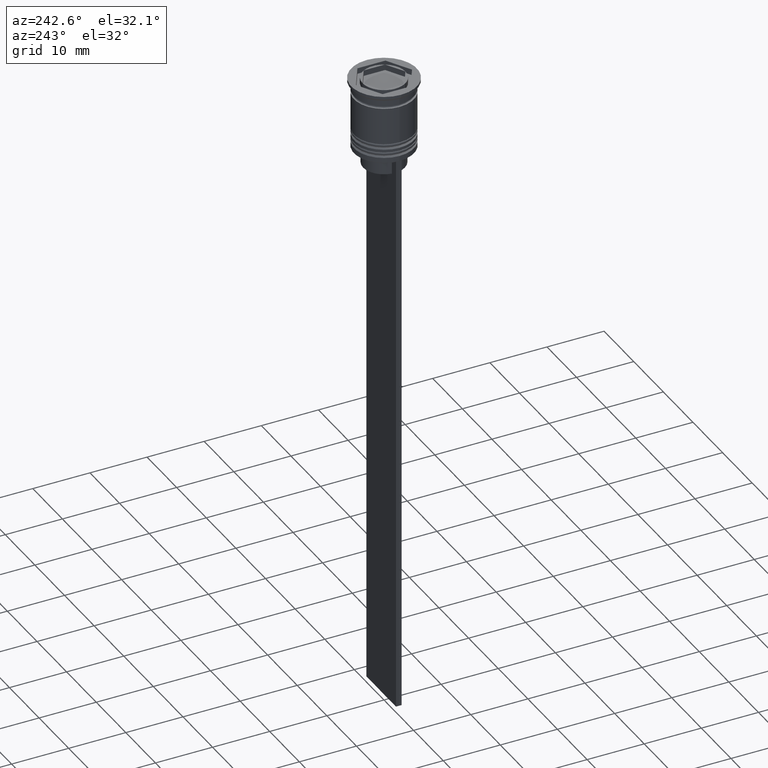
[diagram: clean part render]
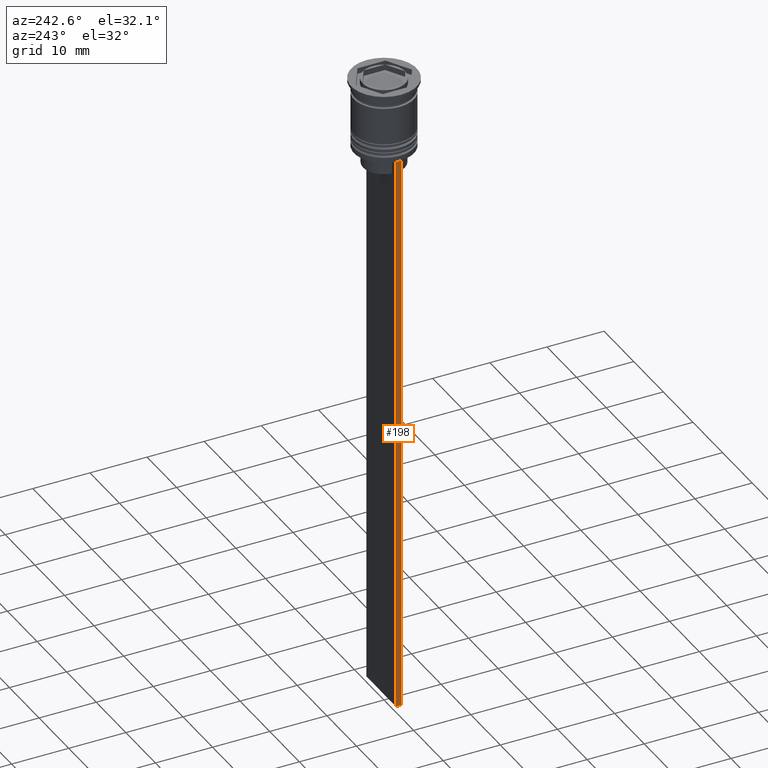
[diagram: same view with one face highlighted and labeled with its STEP entity id]
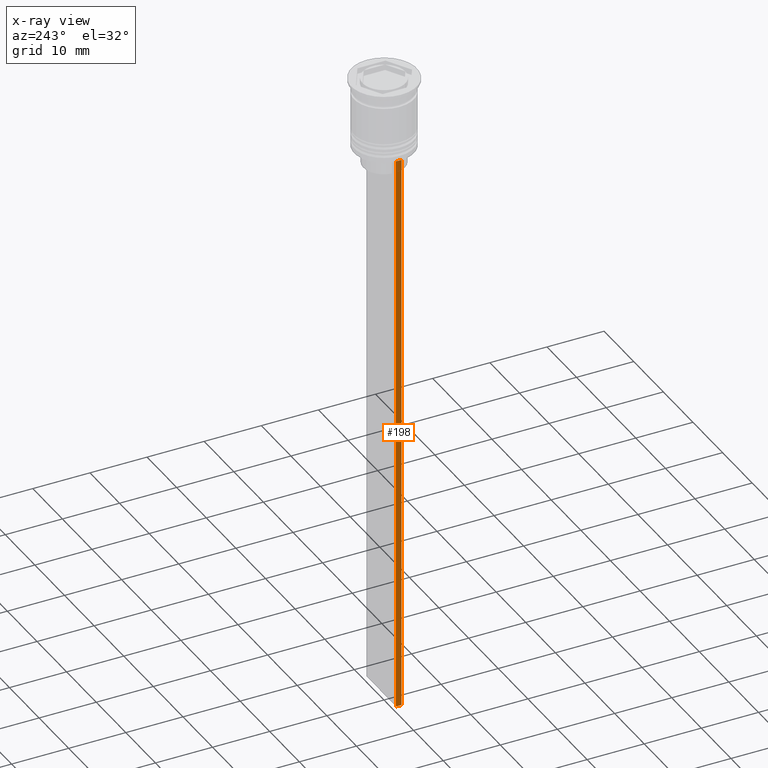
[diagram: x-ray of the same camera — body ghosted, the highlighted face saturated]
A machine part, auxiliary view. The second image highlights one B-rep face of the part: STEP entity #198.
The next image is the same camera in x-ray: the body ghosted, the highlighted face saturated — about 0% of this face is hidden behind the body in this view.
In plain terms, the highlighted planar face has unit normal (-1, 0, 0).
Its self-contained STEP definition (entity closure, byte-faithful):
#7 = EDGE_CURVE ( 'NONE', #854, #694, #1130, .T. ) ;
#114 = CARTESIAN_POINT ( 'NONE',  ( -4.999999999999999112, 0.4999999999999993339, -12.50000000000000000 ) ) ;
#144 = VERTEX_POINT ( 'NONE', #1088 ) ;
#150 = DIRECTION ( 'NONE',  ( 0.000000000000000000, 0.000000000000000000, -1.000000000000000000 ) ) ;
#198 = ADVANCED_FACE ( 'NONE', ( #1972 ), #2041, .T. ) ;
#202 = VECTOR ( 'NONE', #1171, 1000.000000000000000 ) ;
#218 = ORIENTED_EDGE ( 'NONE', *, *, #2319, .T. ) ;
#220 = EDGE_LOOP ( 'NONE', ( #618, #218, #1066, #813 ) ) ;
#247 = CARTESIAN_POINT ( 'NONE',  ( -4.999999999999999112, 0.4999999999999991673, -2.450124378879110054 ) ) ;
#410 = CARTESIAN_POINT ( 'NONE',  ( -4.999999999999999112, -0.5000000000000008882, -112.5000000000000000 ) ) ;
#559 = DIRECTION ( 'NONE',  ( 0.000000000000000000, 1.000000000000000000, 0.000000000000000000 ) ) ;
#618 = ORIENTED_EDGE ( 'NONE', *, *, #7, .F. ) ;
#680 = CARTESIAN_POINT ( 'NONE',  ( -4.999999999999999112, -0.5000000000000008882, -12.50000000000000000 ) ) ;
#685 = EDGE_CURVE ( 'NONE', #144, #1466, #960, .T. ) ;
#694 = VERTEX_POINT ( 'NONE', #939 ) ;
#746 = CARTESIAN_POINT ( 'NONE',  ( -4.999999999999999112, 0.4999999999999991673, -112.5000000000000000 ) ) ;
#773 = DIRECTION ( 'NONE',  ( 0.000000000000000000, 0.000000000000000000, -1.000000000000000000 ) ) ;
#813 = ORIENTED_EDGE ( 'NONE', *, *, #1322, .F. ) ;
#854 = VERTEX_POINT ( 'NONE', #114 ) ;
#868 = CARTESIAN_POINT ( 'NONE',  ( -4.999999999999999112, -0.5000000000000008882, -2.450124378879110054 ) ) ;
#939 = CARTESIAN_POINT ( 'NONE',  ( -4.999999999999999112, -0.5000000000000008882, -12.50000000000000000 ) ) ;
#960 = LINE ( 'NONE', #410, #1918 ) ;
#1062 = LINE ( 'NONE', #247, #2330 ) ;
#1066 = ORIENTED_EDGE ( 'NONE', *, *, #685, .F. ) ;
#1088 = CARTESIAN_POINT ( 'NONE',  ( -4.999999999999999112, -0.5000000000000008882, -112.5000000000000000 ) ) ;
#1130 = LINE ( 'NONE', #680, #202 ) ;
#1171 = DIRECTION ( 'NONE',  ( 0.000000000000000000, -1.000000000000000000, 0.000000000000000000 ) ) ;
#1263 = LINE ( 'NONE', #868, #2095 ) ;
#1322 = EDGE_CURVE ( 'NONE', #694, #144, #1263, .T. ) ;
#1466 = VERTEX_POINT ( 'NONE', #746 ) ;
#1501 = DIRECTION ( 'NONE',  ( 0.000000000000000000, 0.000000000000000000, 1.000000000000000000 ) ) ;
#1918 = VECTOR ( 'NONE', #559, 1000.000000000000000 ) ;
#1972 = FACE_OUTER_BOUND ( 'NONE', #220, .T. ) ;
#2041 = PLANE ( 'NONE',  #2096 ) ;
#2095 = VECTOR ( 'NONE', #150, 1000.000000000000000 ) ;
#2096 = AXIS2_PLACEMENT_3D ( 'NONE', #2196, #2223, #1501 ) ;
#2196 = CARTESIAN_POINT ( 'NONE',  ( -4.999999999999999112, -0.5000000000000008882, -2.450124378879110054 ) ) ;
#2223 = DIRECTION ( 'NONE',  ( -1.000000000000000000, 0.000000000000000000, 0.000000000000000000 ) ) ;
#2319 = EDGE_CURVE ( 'NONE', #854, #1466, #1062, .T. ) ;
#2330 = VECTOR ( 'NONE', #773, 1000.000000000000000 ) ;